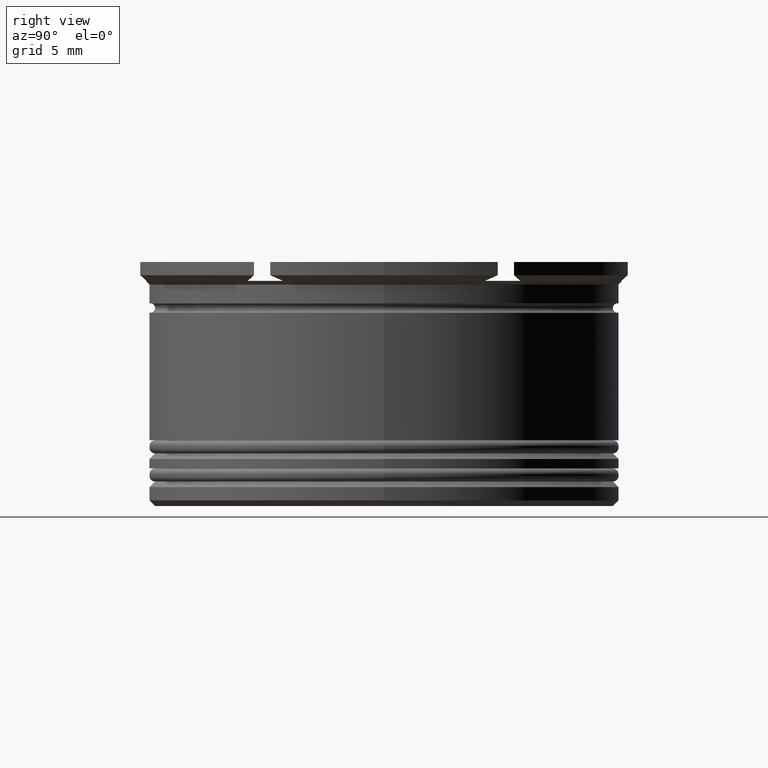
[diagram: clean part render]
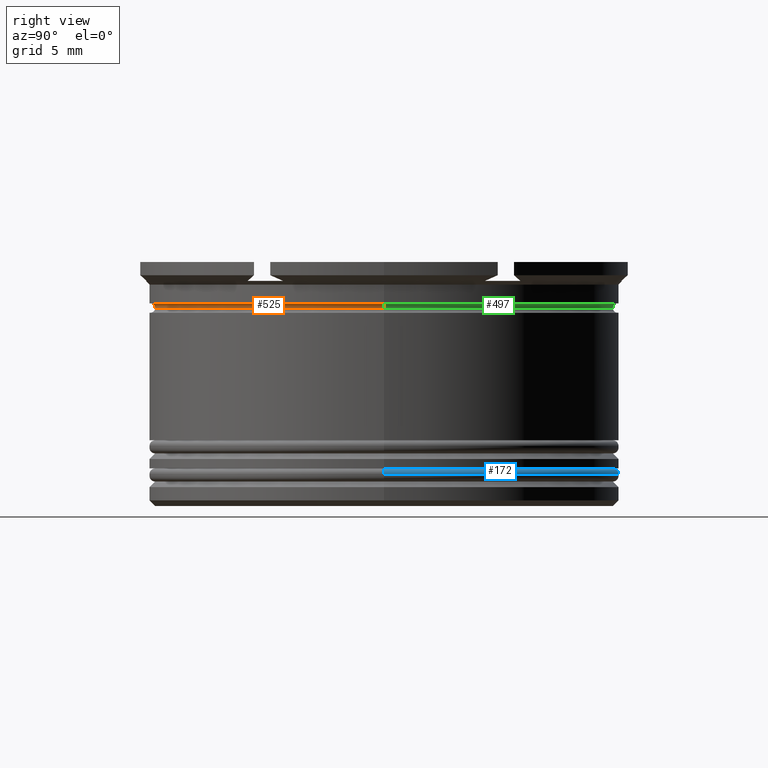
[diagram: same view with three faces highlighted in distinct colors, each labeled with its STEP entity id]
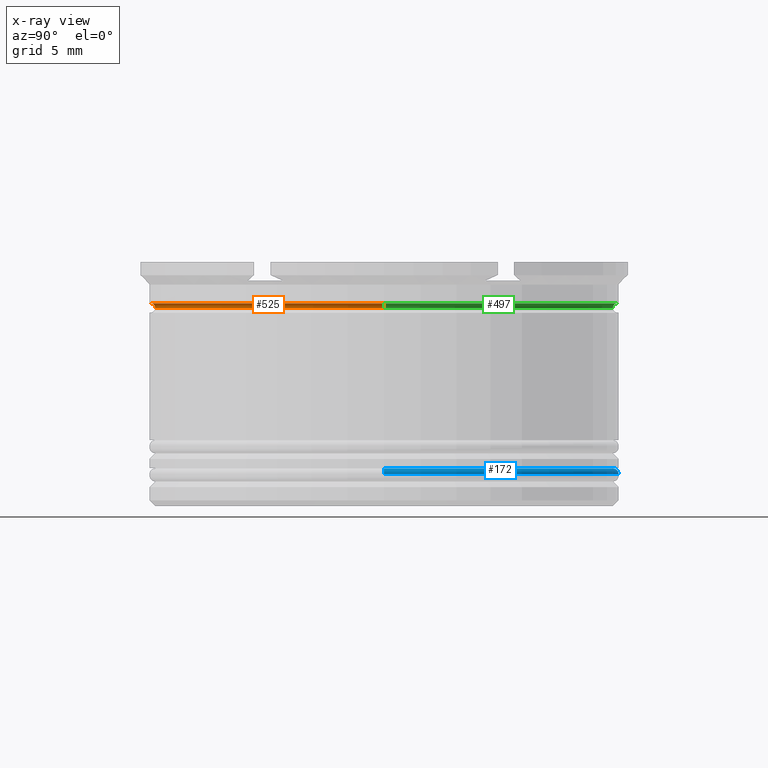
[diagram: x-ray of the same camera — body ghosted, the three highlighted faces saturated]
A machine part, right view with three faces highlighted in distinct colors.
The next image is the same camera in x-ray (body ghosted, the three faces saturated) — at least one of them is partly hidden behind the body in this view.
Their STEP definitions:

[orange] entity #525 — the highlighted toroidal blend (fillet) surface has major radius 12.45 mm and minor (blend) radius 0.25 mm.
#60 = VERTEX_POINT ( 'NONE', #777 ) ;
#92 = EDGE_CURVE ( 'NONE', #1673, #1858, #1475, .T. ) ;
#93 = DIRECTION ( 'NONE',  ( 0.000000000000000000, 0.000000000000000000, -1.000000000000000000 ) ) ;
#144 = CIRCLE ( 'NONE', #645, 12.20000000000000284 ) ;
#250 = TOROIDAL_SURFACE ( 'NONE', #1224, 12.45000000000000284, 0.2500000000000002220 ) ;
#258 = CARTESIAN_POINT ( 'NONE',  ( 12.45000000000000284, 0.000000000000000000, -2.449999999999999734 ) ) ;
#409 = AXIS2_PLACEMENT_3D ( 'NONE', #1792, #1381, #505 ) ;
#485 = DIRECTION ( 'NONE',  ( -0.000000000000000000, -0.000000000000000000, 1.000000000000000000 ) ) ;
#505 = DIRECTION ( 'NONE',  ( 1.000000000000000000, 0.000000000000000000, 0.000000000000000000 ) ) ;
#517 = CARTESIAN_POINT ( 'NONE',  ( 12.20000000000000284, 0.000000000000000000, -2.449999999999999734 ) ) ;
#525 = ADVANCED_FACE ( 'NONE', ( #1897 ), #250, .F. ) ;
#576 = ORIENTED_EDGE ( 'NONE', *, *, #92, .F. ) ;
#582 = ORIENTED_EDGE ( 'NONE', *, *, #2223, .T. ) ;
#602 = EDGE_CURVE ( 'NONE', #60, #1673, #2059, .T. ) ;
#636 = DIRECTION ( 'NONE',  ( 1.224646799147353207E-16, 1.000000000000000000, 0.000000000000000000 ) ) ;
#645 = AXIS2_PLACEMENT_3D ( 'NONE', #2292, #485, #2322 ) ;
#777 = CARTESIAN_POINT ( 'NONE',  ( -12.45000000000000284, 1.524685264938455237E-15, -2.199999999999999734 ) ) ;
#812 = CARTESIAN_POINT ( 'NONE',  ( 0.000000000000000000, 0.000000000000000000, -2.449999999999999734 ) ) ;
#816 = ORIENTED_EDGE ( 'NONE', *, *, #1123, .T. ) ;
#1123 = EDGE_CURVE ( 'NONE', #1707, #1858, #144, .T. ) ;
#1192 = CARTESIAN_POINT ( 'NONE',  ( -12.20000000000000284, 1.494069094959771450E-15, -2.449999999999999734 ) ) ;
#1224 = AXIS2_PLACEMENT_3D ( 'NONE', #812, #1364, #2098 ) ;
#1363 = CARTESIAN_POINT ( 'NONE',  ( 12.45000000000000284, 0.000000000000000000, -2.199999999999999734 ) ) ;
#1364 = DIRECTION ( 'NONE',  ( -0.000000000000000000, -0.000000000000000000, 1.000000000000000000 ) ) ;
#1381 = DIRECTION ( 'NONE',  ( -0.000000000000000000, -0.000000000000000000, 1.000000000000000000 ) ) ;
#1388 = CARTESIAN_POINT ( 'NONE',  ( -12.45000000000000284, 1.524685264938455237E-15, -2.449999999999999734 ) ) ;
#1468 = EDGE_LOOP ( 'NONE', ( #582, #816, #576, #2057 ) ) ;
#1475 = CIRCLE ( 'NONE', #1786, 0.2500000000000002220 ) ;
#1673 = VERTEX_POINT ( 'NONE', #1363 ) ;
#1680 = AXIS2_PLACEMENT_3D ( 'NONE', #1388, #636, #1744 ) ;
#1702 = DIRECTION ( 'NONE',  ( 0.000000000000000000, -1.000000000000000000, 0.000000000000000000 ) ) ;
#1707 = VERTEX_POINT ( 'NONE', #1192 ) ;
#1744 = DIRECTION ( 'NONE',  ( -1.000000000000000000, 1.224646799147349509E-16, 0.000000000000000000 ) ) ;
#1786 = AXIS2_PLACEMENT_3D ( 'NONE', #258, #1702, #93 ) ;
#1792 = CARTESIAN_POINT ( 'NONE',  ( 0.000000000000000000, 0.000000000000000000, -2.199999999999999734 ) ) ;
#1858 = VERTEX_POINT ( 'NONE', #517 ) ;
#1897 = FACE_OUTER_BOUND ( 'NONE', #1468, .T. ) ;
#1959 = CIRCLE ( 'NONE', #1680, 0.2500000000000002220 ) ;
#2057 = ORIENTED_EDGE ( 'NONE', *, *, #602, .F. ) ;
#2059 = CIRCLE ( 'NONE', #409, 12.45000000000000284 ) ;
#2098 = DIRECTION ( 'NONE',  ( 1.000000000000000000, 0.000000000000000000, 0.000000000000000000 ) ) ;
#2223 = EDGE_CURVE ( 'NONE', #60, #1707, #1959, .T. ) ;
#2292 = CARTESIAN_POINT ( 'NONE',  ( 0.000000000000000000, 0.000000000000000000, -2.449999999999999734 ) ) ;
#2322 = DIRECTION ( 'NONE',  ( 1.000000000000000000, 0.000000000000000000, 0.000000000000000000 ) ) ;

[blue] entity #172 — the highlighted toroidal blend (fillet) surface has major radius 12.2 mm and minor (blend) radius 0.3 mm.
#68 = DIRECTION ( 'NONE',  ( -1.000000000000000000, 0.000000000000000000, 0.000000000000000000 ) ) ;
#70 = AXIS2_PLACEMENT_3D ( 'NONE', #1906, #1316, #580 ) ;
#73 = AXIS2_PLACEMENT_3D ( 'NONE', #532, #2192, #1280 ) ;
#161 = EDGE_CURVE ( 'NONE', #383, #2204, #557, .T. ) ;
#172 = ADVANCED_FACE ( 'NONE', ( #699 ), #2137, .T. ) ;
#332 = CIRCLE ( 'NONE', #70, 0.2999999999999999334 ) ;
#383 = VERTEX_POINT ( 'NONE', #544 ) ;
#455 = AXIS2_PLACEMENT_3D ( 'NONE', #799, #2268, #68 ) ;
#490 = VERTEX_POINT ( 'NONE', #774 ) ;
#532 = CARTESIAN_POINT ( 'NONE',  ( 0.000000000000000000, 0.000000000000000000, -11.29999999999999716 ) ) ;
#544 = CARTESIAN_POINT ( 'NONE',  ( -12.20000000000000107, 0.000000000000000000, -11.00000000000000000 ) ) ;
#557 = CIRCLE ( 'NONE', #985, 0.2999999999999999334 ) ;
#580 = DIRECTION ( 'NONE',  ( -1.000000000000000000, -1.224646799147353207E-16, 0.000000000000000000 ) ) ;
#699 = FACE_OUTER_BOUND ( 'NONE', #1883, .T. ) ;
#774 = CARTESIAN_POINT ( 'NONE',  ( 12.50000000000000000, 0.000000000000000000, -11.29999999999999716 ) ) ;
#799 = CARTESIAN_POINT ( 'NONE',  ( 0.000000000000000000, 0.000000000000000000, -11.00000000000000000 ) ) ;
#847 = DIRECTION ( 'NONE',  ( 0.000000000000000000, 0.000000000000000000, -1.000000000000000000 ) ) ;
#881 = DIRECTION ( 'NONE',  ( 0.000000000000000000, 0.000000000000000000, -1.000000000000000000 ) ) ;
#882 = ORIENTED_EDGE ( 'NONE', *, *, #161, .F. ) ;
#985 = AXIS2_PLACEMENT_3D ( 'NONE', #1982, #1774, #881 ) ;
#1017 = EDGE_CURVE ( 'NONE', #1451, #383, #2337, .T. ) ;
#1034 = CARTESIAN_POINT ( 'NONE',  ( 0.000000000000000000, 0.000000000000000000, -11.29999999999999716 ) ) ;
#1060 = EDGE_CURVE ( 'NONE', #1451, #490, #332, .T. ) ;
#1077 = ORIENTED_EDGE ( 'NONE', *, *, #1367, .F. ) ;
#1099 = AXIS2_PLACEMENT_3D ( 'NONE', #1034, #847, #1963 ) ;
#1280 = DIRECTION ( 'NONE',  ( -1.000000000000000000, 0.000000000000000000, 0.000000000000000000 ) ) ;
#1316 = DIRECTION ( 'NONE',  ( -1.224646799147353207E-16, 1.000000000000000000, 0.000000000000000000 ) ) ;
#1367 = EDGE_CURVE ( 'NONE', #2204, #490, #1796, .T. ) ;
#1451 = VERTEX_POINT ( 'NONE', #2094 ) ;
#1774 = DIRECTION ( 'NONE',  ( -0.000000000000000000, -1.000000000000000000, -0.000000000000000000 ) ) ;
#1796 = CIRCLE ( 'NONE', #73, 12.50000000000000000 ) ;
#1814 = ORIENTED_EDGE ( 'NONE', *, *, #1060, .T. ) ;
#1883 = EDGE_LOOP ( 'NONE', ( #2133, #1814, #1077, #882 ) ) ;
#1906 = CARTESIAN_POINT ( 'NONE',  ( 12.20000000000000107, 1.494069094959771056E-15, -11.29999999999999716 ) ) ;
#1941 = CARTESIAN_POINT ( 'NONE',  ( -12.50000000000000000, 1.530808498934191521E-15, -11.29999999999999716 ) ) ;
#1963 = DIRECTION ( 'NONE',  ( -1.000000000000000000, 0.000000000000000000, 0.000000000000000000 ) ) ;
#1982 = CARTESIAN_POINT ( 'NONE',  ( -12.20000000000000107, 0.000000000000000000, -11.29999999999999716 ) ) ;
#2094 = CARTESIAN_POINT ( 'NONE',  ( 12.20000000000000107, 1.512438796946981289E-15, -11.00000000000000000 ) ) ;
#2133 = ORIENTED_EDGE ( 'NONE', *, *, #1017, .F. ) ;
#2137 = TOROIDAL_SURFACE ( 'NONE', #1099, 12.20000000000000107, 0.2999999999999999889 ) ;
#2192 = DIRECTION ( 'NONE',  ( 0.000000000000000000, 0.000000000000000000, -1.000000000000000000 ) ) ;
#2204 = VERTEX_POINT ( 'NONE', #1941 ) ;
#2268 = DIRECTION ( 'NONE',  ( -0.000000000000000000, -0.000000000000000000, 1.000000000000000000 ) ) ;
#2337 = CIRCLE ( 'NONE', #455, 12.20000000000000107 ) ;

[green] entity #497 — the highlighted toroidal blend (fillet) surface has major radius 12.45 mm and minor (blend) radius 0.25 mm.
#60 = VERTEX_POINT ( 'NONE', #777 ) ;
#92 = EDGE_CURVE ( 'NONE', #1673, #1858, #1475, .T. ) ;
#93 = DIRECTION ( 'NONE',  ( 0.000000000000000000, 0.000000000000000000, -1.000000000000000000 ) ) ;
#116 = CIRCLE ( 'NONE', #531, 12.20000000000000284 ) ;
#207 = ORIENTED_EDGE ( 'NONE', *, *, #92, .T. ) ;
#258 = CARTESIAN_POINT ( 'NONE',  ( 12.45000000000000284, 0.000000000000000000, -2.449999999999999734 ) ) ;
#401 = DIRECTION ( 'NONE',  ( 1.000000000000000000, 0.000000000000000000, 0.000000000000000000 ) ) ;
#497 = ADVANCED_FACE ( 'NONE', ( #2085 ), #1951, .F. ) ;
#517 = CARTESIAN_POINT ( 'NONE',  ( 12.20000000000000284, 0.000000000000000000, -2.449999999999999734 ) ) ;
#531 = AXIS2_PLACEMENT_3D ( 'NONE', #884, #1805, #2358 ) ;
#629 = CARTESIAN_POINT ( 'NONE',  ( 0.000000000000000000, 0.000000000000000000, -2.449999999999999734 ) ) ;
#636 = DIRECTION ( 'NONE',  ( 1.224646799147353207E-16, 1.000000000000000000, 0.000000000000000000 ) ) ;
#715 = CARTESIAN_POINT ( 'NONE',  ( 0.000000000000000000, 0.000000000000000000, -2.199999999999999734 ) ) ;
#777 = CARTESIAN_POINT ( 'NONE',  ( -12.45000000000000284, 1.524685264938455237E-15, -2.199999999999999734 ) ) ;
#884 = CARTESIAN_POINT ( 'NONE',  ( 0.000000000000000000, 0.000000000000000000, -2.449999999999999734 ) ) ;
#1192 = CARTESIAN_POINT ( 'NONE',  ( -12.20000000000000284, 1.494069094959771450E-15, -2.449999999999999734 ) ) ;
#1363 = CARTESIAN_POINT ( 'NONE',  ( 12.45000000000000284, 0.000000000000000000, -2.199999999999999734 ) ) ;
#1365 = ORIENTED_EDGE ( 'NONE', *, *, #2223, .F. ) ;
#1388 = CARTESIAN_POINT ( 'NONE',  ( -12.45000000000000284, 1.524685264938455237E-15, -2.449999999999999734 ) ) ;
#1475 = CIRCLE ( 'NONE', #1786, 0.2500000000000002220 ) ;
#1542 = DIRECTION ( 'NONE',  ( -0.000000000000000000, -0.000000000000000000, 1.000000000000000000 ) ) ;
#1673 = VERTEX_POINT ( 'NONE', #1363 ) ;
#1680 = AXIS2_PLACEMENT_3D ( 'NONE', #1388, #636, #1744 ) ;
#1702 = DIRECTION ( 'NONE',  ( 0.000000000000000000, -1.000000000000000000, 0.000000000000000000 ) ) ;
#1707 = VERTEX_POINT ( 'NONE', #1192 ) ;
#1712 = ORIENTED_EDGE ( 'NONE', *, *, #1977, .T. ) ;
#1744 = DIRECTION ( 'NONE',  ( -1.000000000000000000, 1.224646799147349509E-16, 0.000000000000000000 ) ) ;
#1786 = AXIS2_PLACEMENT_3D ( 'NONE', #258, #1702, #93 ) ;
#1800 = AXIS2_PLACEMENT_3D ( 'NONE', #715, #1996, #1976 ) ;
#1805 = DIRECTION ( 'NONE',  ( -0.000000000000000000, -0.000000000000000000, 1.000000000000000000 ) ) ;
#1858 = VERTEX_POINT ( 'NONE', #517 ) ;
#1950 = EDGE_LOOP ( 'NONE', ( #207, #1712, #1365, #2144 ) ) ;
#1951 = TOROIDAL_SURFACE ( 'NONE', #1986, 12.45000000000000284, 0.2500000000000002220 ) ;
#1959 = CIRCLE ( 'NONE', #1680, 0.2500000000000002220 ) ;
#1976 = DIRECTION ( 'NONE',  ( 1.000000000000000000, 0.000000000000000000, 0.000000000000000000 ) ) ;
#1977 = EDGE_CURVE ( 'NONE', #1858, #1707, #116, .T. ) ;
#1986 = AXIS2_PLACEMENT_3D ( 'NONE', #629, #1542, #401 ) ;
#1996 = DIRECTION ( 'NONE',  ( -0.000000000000000000, -0.000000000000000000, 1.000000000000000000 ) ) ;
#2001 = EDGE_CURVE ( 'NONE', #1673, #60, #2310, .T. ) ;
#2085 = FACE_OUTER_BOUND ( 'NONE', #1950, .T. ) ;
#2144 = ORIENTED_EDGE ( 'NONE', *, *, #2001, .F. ) ;
#2223 = EDGE_CURVE ( 'NONE', #60, #1707, #1959, .T. ) ;
#2310 = CIRCLE ( 'NONE', #1800, 12.45000000000000284 ) ;
#2358 = DIRECTION ( 'NONE',  ( 1.000000000000000000, 0.000000000000000000, 0.000000000000000000 ) ) ;